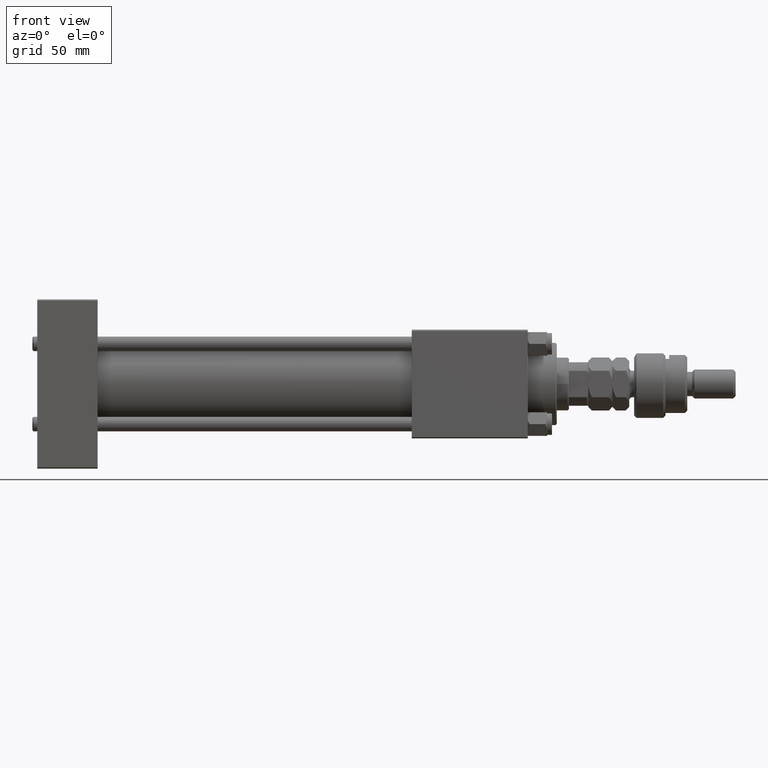
[diagram: clean part render]
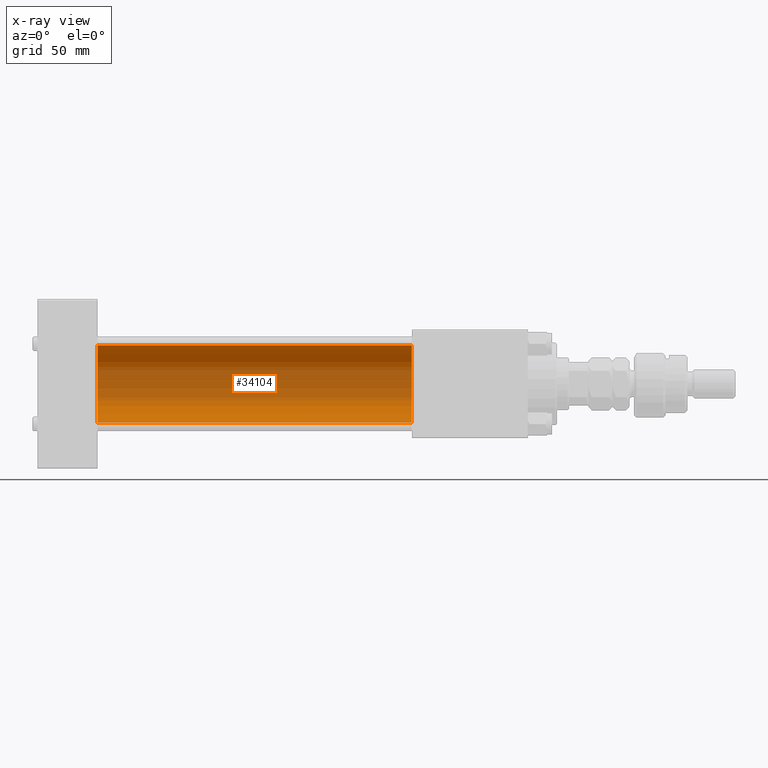
[diagram: x-ray — body ghosted, one internal face saturated and labeled with its STEP entity id]
A machine part, front view, then the same camera in x-ray: the body is ghosted and one INTERNAL B-rep face — a face not visible from any outside direction — is saturated and labeled: STEP entity #34104.
In plain terms, the highlighted cylindrical surface (partial cylindrical patch) has radius 16 mm, axis along (-1, -0, -0).
Its self-contained STEP definition (entity closure, byte-faithful):
#1141 = CARTESIAN_POINT ( 'NONE',  ( 155.0000000000000000, -6.426503353294456087E-16, -16.00000000000000000 ) ) ;
#2281 = CARTESIAN_POINT ( 'NONE',  ( 155.0000000000000000, -2.602085213965210642E-15, 16.00000000000000000 ) ) ;
#2542 = DIRECTION ( 'NONE',  ( -1.000000000000000000, -0.000000000000000000, -0.000000000000000000 ) ) ;
#3618 = ORIENTED_EDGE ( 'NONE', *, *, #34346, .T. ) ;
#4966 = CIRCLE ( 'NONE', #45881, 16.00000000000000000 ) ;
#5603 = CARTESIAN_POINT ( 'NONE',  ( 155.0000000000000000, -2.602085213965210642E-15, 0.000000000000000000 ) ) ;
#5863 = DIRECTION ( 'NONE',  ( -1.000000000000000000, -0.000000000000000000, -0.000000000000000000 ) ) ;
#6647 = CARTESIAN_POINT ( 'NONE',  ( 155.0000000000000000, -2.602085213965210642E-15, 0.000000000000000000 ) ) ;
#7230 = ORIENTED_EDGE ( 'NONE', *, *, #50700, .F. ) ;
#7350 = DIRECTION ( 'NONE',  ( 0.000000000000000000, 0.000000000000000000, -1.000000000000000000 ) ) ;
#10394 = DIRECTION ( 'NONE',  ( 0.000000000000000000, 0.000000000000000000, -1.000000000000000000 ) ) ;
#16153 = EDGE_CURVE ( 'NONE', #34072, #29282, #39120, .T. ) ;
#17317 = ORIENTED_EDGE ( 'NONE', *, *, #16153, .T. ) ;
#17428 = LINE ( 'NONE', #1141, #20815 ) ;
#18972 = AXIS2_PLACEMENT_3D ( 'NONE', #6647, #19455, #10394 ) ;
#19455 = DIRECTION ( 'NONE',  ( 1.000000000000000000, 0.000000000000000000, 0.000000000000000000 ) ) ;
#20815 = VECTOR ( 'NONE', #45986, 1000.000000000000000 ) ;
#21884 = DIRECTION ( 'NONE',  ( 0.000000000000000000, 0.000000000000000000, 1.000000000000000000 ) ) ;
#23512 = CARTESIAN_POINT ( 'NONE',  ( 25.00000000000000000, -6.426503353294456087E-16, -16.00000000000000000 ) ) ;
#24200 = CARTESIAN_POINT ( 'NONE',  ( 25.00000000000000000, -2.602085213965210642E-15, 16.00000000000000000 ) ) ;
#24622 = VERTEX_POINT ( 'NONE', #36497 ) ;
#25355 = FACE_OUTER_BOUND ( 'NONE', #31118, .T. ) ;
#26605 = ORIENTED_EDGE ( 'NONE', *, *, #41620, .F. ) ;
#29282 = VERTEX_POINT ( 'NONE', #24200 ) ;
#31118 = EDGE_LOOP ( 'NONE', ( #26605, #3618, #17317, #7230 ) ) ;
#33263 = VECTOR ( 'NONE', #2542, 1000.000000000000000 ) ;
#33803 = VERTEX_POINT ( 'NONE', #23512 ) ;
#33920 = CYLINDRICAL_SURFACE ( 'NONE', #36883, 16.00000000000000000 ) ;
#34072 = VERTEX_POINT ( 'NONE', #42692 ) ;
#34104 = ADVANCED_FACE ( 'NONE', ( #25355 ), #33920, .F. ) ;
#34346 = EDGE_CURVE ( 'NONE', #24622, #34072, #38597, .T. ) ;
#36497 = CARTESIAN_POINT ( 'NONE',  ( 155.0000000000000000, -6.426503353294456087E-16, -16.00000000000000000 ) ) ;
#36883 = AXIS2_PLACEMENT_3D ( 'NONE', #5603, #5863, #21884 ) ;
#38597 = CIRCLE ( 'NONE', #18972, 16.00000000000000000 ) ;
#39120 = LINE ( 'NONE', #2281, #33263 ) ;
#41620 = EDGE_CURVE ( 'NONE', #24622, #33803, #17428, .T. ) ;
#42692 = CARTESIAN_POINT ( 'NONE',  ( 155.0000000000000000, -2.602085213965210642E-15, 16.00000000000000000 ) ) ;
#43910 = CARTESIAN_POINT ( 'NONE',  ( 25.00000000000000000, -2.602085213965210642E-15, 0.000000000000000000 ) ) ;
#45881 = AXIS2_PLACEMENT_3D ( 'NONE', #43910, #47399, #7350 ) ;
#45986 = DIRECTION ( 'NONE',  ( -1.000000000000000000, -0.000000000000000000, -0.000000000000000000 ) ) ;
#47399 = DIRECTION ( 'NONE',  ( 1.000000000000000000, 0.000000000000000000, 0.000000000000000000 ) ) ;
#50700 = EDGE_CURVE ( 'NONE', #33803, #29282, #4966, .T. ) ;